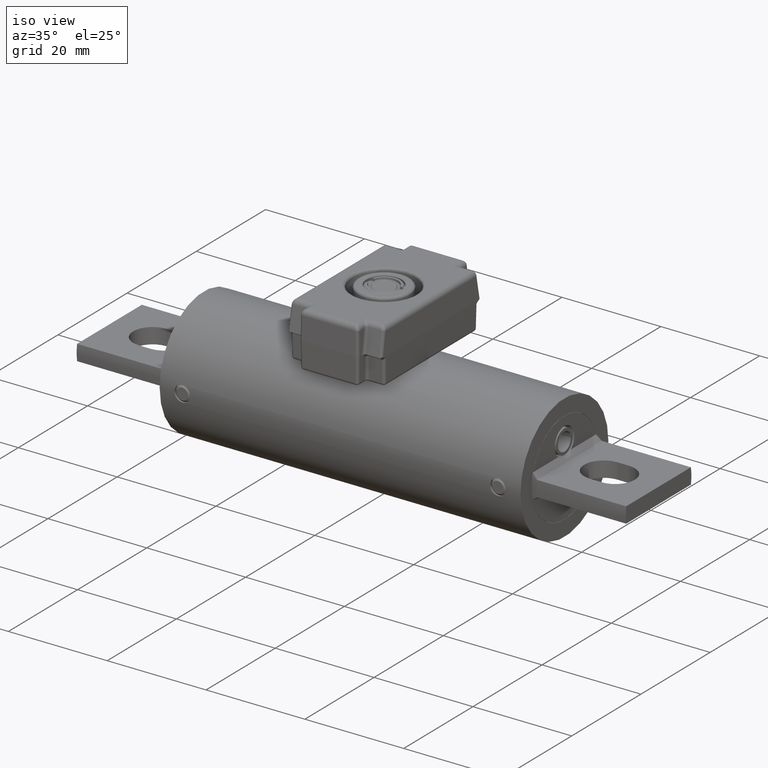
[diagram: clean part render]
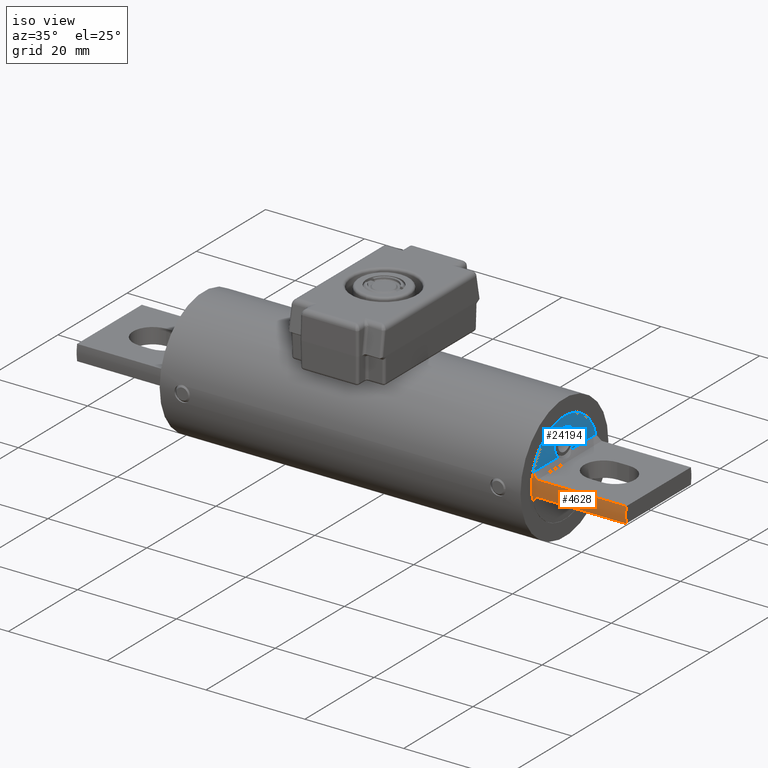
[diagram: same view with the hole feature highlighted: cylindrical wall and planar end face, labeled with their STEP entity ids]
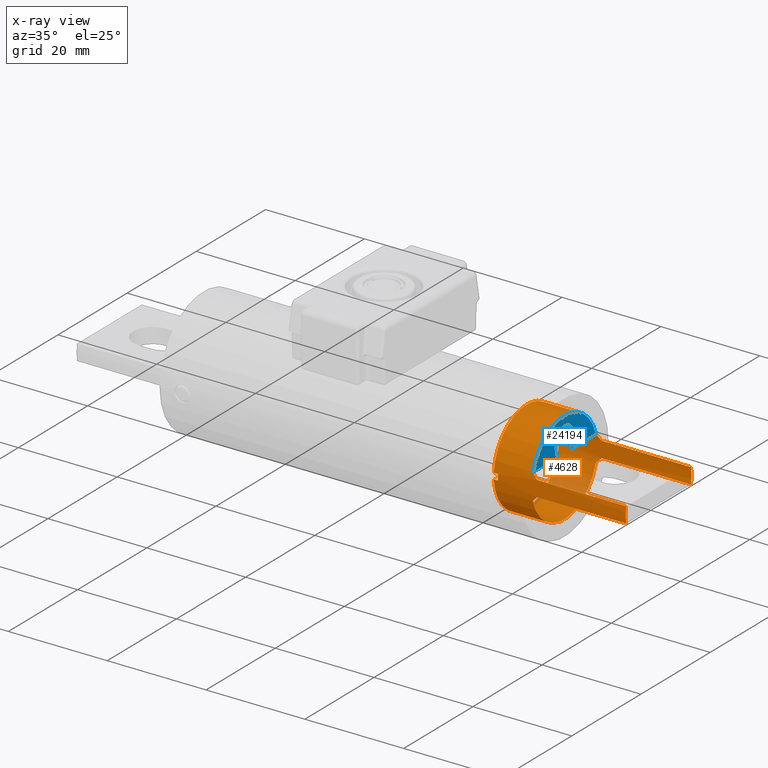
[diagram: x-ray of the same camera — body ghosted, the hole faces saturated]
A machine part, iso view. The highlighted faces form one hole feature of diameter 18.9738 mm: the cylindrical wall (entity #4628, orange) and its adjacent planar end face (entity #24194, blue) — they share a circular edge in the B-rep.
The next image is the same camera in x-ray (body ghosted, the hole faces saturated) — the bore reads through the body.
Wall:
#419 = VERTEX_POINT ( 'NONE', #13958 ) ;
#1029 = FACE_OUTER_BOUND ( 'NONE', #38234, .T. ) ;
#1181 = CARTESIAN_POINT ( 'NONE',  ( 1.477500000000000300, -0.3682336214959194300, -0.06250000000000002800 ) ) ;
#1650 = LINE ( 'NONE', #36578, #18123 ) ;
#1981 = CARTESIAN_POINT ( 'NONE',  ( 2.187500000000000000, -3.554355117631784200E-017, 2.589028924451572300E-017 ) ) ;
#2059 = ORIENTED_EDGE ( 'NONE', *, *, #4612, .T. ) ;
#2123 = DIRECTION ( 'NONE',  ( 0.0000000000000000000, 1.249000902703300900E-016, -1.000000000000000000 ) ) ;
#2461 = CARTESIAN_POINT ( 'NONE',  ( 1.450660385879203100, -0.3629159479313642200, -0.08933961412079789700 ) ) ;
#2647 = CARTESIAN_POINT ( 'NONE',  ( 1.437500000000000200, -0.3591601314177284000, 0.1025000000000005100 ) ) ;
#3353 = EDGE_CURVE ( 'NONE', #36595, #419, #27406, .T. ) ;
#4417 =( BOUNDED_CURVE ( )  B_SPLINE_CURVE ( 3, ( #39522, #2461, #21007, #24201 ),
 .UNSPECIFIED., .F., .T. ) 
 B_SPLINE_CURVE_WITH_KNOTS ( ( 4, 4 ),
 ( 1.292798332494933500, 1.402669369813196700 ),
 .UNSPECIFIED. ) 
 CURVE ( )  GEOMETRIC_REPRESENTATION_ITEM ( )  RATIONAL_B_SPLINE_CURVE ( ( 1.000000000000000000, 0.9989942825652147200, 0.9989942825652147200, 1.000000000000000000 ) ) 
 REPRESENTATION_ITEM ( '' )  );
#4612 = EDGE_CURVE ( 'NONE', #6393, #5491, #17468, .T. ) ;
#4628 = ADVANCED_FACE ( 'NONE', ( #25780, #1029 ), #37455, .T. ) ;
#5069 = CARTESIAN_POINT ( 'NONE',  ( 1.135500000000000200, -5.614887097410527000E-017, 7.178453579810328300E-019 ) ) ;
#5362 = LINE ( 'NONE', #31851, #20886 ) ;
#5422 = LINE ( 'NONE', #30240, #13658 ) ;
#5491 = VERTEX_POINT ( 'NONE', #8096 ) ;
#5558 = CARTESIAN_POINT ( 'NONE',  ( 2.187500000000000000, -3.554355117631784200E-017, 2.589028924451572300E-017 ) ) ;
#5664 = DIRECTION ( 'NONE',  ( 1.000000000000000000, 1.958680589143292400E-017, 2.392817859936758000E-017 ) ) ;
#6393 = VERTEX_POINT ( 'NONE', #37981 ) ;
#6484 = CIRCLE ( 'NONE', #14039, 0.3735000000000000000 ) ;
#6677 = CARTESIAN_POINT ( 'NONE',  ( 2.187500000000000000, -0.3682336214959194300, 0.06249999999999999300 ) ) ;
#6705 = LINE ( 'NONE', #25778, #13956 ) ;
#6865 = VERTEX_POINT ( 'NONE', #18351 ) ;
#6878 = VERTEX_POINT ( 'NONE', #9271 ) ;
#6962 = CARTESIAN_POINT ( 'NONE',  ( 1.464007142278144700, 0.3659434894754097800, -0.07599285772185598900 ) ) ;
#7252 = ORIENTED_EDGE ( 'NONE', *, *, #33712, .T. ) ;
#8096 = CARTESIAN_POINT ( 'NONE',  ( 1.135500000000000200, 0.3727599763923159500, -0.02349999999999995800 ) ) ;
#8190 = DIRECTION ( 'NONE',  ( 0.0000000000000000000, -1.249000902703300900E-016, 1.000000000000000000 ) ) ;
#8668 = DIRECTION ( 'NONE',  ( 0.0000000000000000000, -1.249000902703300900E-016, 1.000000000000000000 ) ) ;
#8784 = DIRECTION ( 'NONE',  ( -1.000000000000000000, -1.958680589143292400E-017, -2.392817859936758000E-017 ) ) ;
#8884 = EDGE_CURVE ( 'NONE', #419, #6393, #5422, .T. ) ;
#8907 = VERTEX_POINT ( 'NONE', #24611 ) ;
#9271 = CARTESIAN_POINT ( 'NONE',  ( 1.135500000000000200, 0.3727599763923159500, 0.02350000000000004900 ) ) ;
#9414 = VERTEX_POINT ( 'NONE', #19151 ) ;
#9728 = DIRECTION ( 'NONE',  ( 1.000000000000000000, 1.958680589143292400E-017, 2.392817859936758000E-017 ) ) ;
#9740 =( BOUNDED_CURVE ( )  B_SPLINE_CURVE ( 3, ( #18041, #36698, #21168, #2647 ),
 .UNSPECIFIED., .F., .F. ) 
 B_SPLINE_CURVE_WITH_KNOTS ( ( 4, 4 ),
 ( 4.880515937366389800, 4.990386974684653000 ),
 .UNSPECIFIED. ) 
 CURVE ( )  GEOMETRIC_REPRESENTATION_ITEM ( )  RATIONAL_B_SPLINE_CURVE ( ( 1.000000000000000000, 0.9989942825652147200, 0.9989942825652147200, 1.000000000000000000 ) ) 
 REPRESENTATION_ITEM ( '' )  );
#10015 = CARTESIAN_POINT ( 'NONE',  ( 1.477500000000000300, 0.3682336214959193200, 0.06250000000000005600 ) ) ;
#10829 = ORIENTED_EDGE ( 'NONE', *, *, #26887, .F. ) ;
#10997 = CARTESIAN_POINT ( 'NONE',  ( 1.167500000000000000, -5.552209318557942000E-017, 1.483547073160791200E-018 ) ) ;
#11334 = CARTESIAN_POINT ( 'NONE',  ( 1.437500000000000200, -0.3591601314177284000, 0.1025000000000005100 ) ) ;
#11903 = CARTESIAN_POINT ( 'NONE',  ( 1.437500000000000200, 0.3591601314177282900, 0.1025000000000005900 ) ) ;
#12544 = AXIS2_PLACEMENT_3D ( 'NONE', #15726, #37452, #18793 ) ;
#12698 = EDGE_CURVE ( 'NONE', #6865, #36595, #6705, .T. ) ;
#12801 = DIRECTION ( 'NONE',  ( 0.0000000000000000000, -1.249000902703300900E-016, 1.000000000000000000 ) ) ;
#13054 = CARTESIAN_POINT ( 'NONE',  ( 1.450660385879203100, 0.3629159479313641100, 0.08933961412079792500 ) ) ;
#13657 = ORIENTED_EDGE ( 'NONE', *, *, #24847, .F. ) ;
#13658 = VECTOR ( 'NONE', #36918, 39.37007874015748100 ) ;
#13851 = EDGE_LOOP ( 'NONE', ( #16495, #16809, #7252, #19587, #18102, #34927, #2059, #27158 ) ) ;
#13891 = LINE ( 'NONE', #33490, #37767 ) ;
#13956 = VECTOR ( 'NONE', #28914, 39.37007874015748100 ) ;
#13958 = CARTESIAN_POINT ( 'NONE',  ( 1.167500000000000000, -0.3727599763923160600, -0.02350000000000005200 ) ) ;
#14039 = AXIS2_PLACEMENT_3D ( 'NONE', #5558, #27320, #8668 ) ;
#14116 = DIRECTION ( 'NONE',  ( 0.0000000000000000000, -1.249000902703300900E-016, 1.000000000000000000 ) ) ;
#14542 = DIRECTION ( 'NONE',  ( 1.000000000000000000, 1.958680589143292400E-017, 2.392817859936758000E-017 ) ) ;
#14893 = CARTESIAN_POINT ( 'NONE',  ( 2.187500000000000000, -3.554355117631784200E-017, 2.589028924451572300E-017 ) ) ;
#15211 = VERTEX_POINT ( 'NONE', #16289 ) ;
#15295 = VECTOR ( 'NONE', #5664, 39.37007874015748100 ) ;
#15310 = AXIS2_PLACEMENT_3D ( 'NONE', #1981, #39165, #2123 ) ;
#15514 = EDGE_CURVE ( 'NONE', #16676, #38497, #4417, .T. ) ;
#15561 = EDGE_CURVE ( 'NONE', #22190, #19717, #38355, .T. ) ;
#15726 = CARTESIAN_POINT ( 'NONE',  ( 1.135500000000000200, -5.614887097410527000E-017, 7.178453579810328300E-019 ) ) ;
#16200 = CIRCLE ( 'NONE', #37530, 0.3735000000000000000 ) ;
#16289 = CARTESIAN_POINT ( 'NONE',  ( 2.187500000000000000, 0.3682336214959193200, -0.06249999999999992400 ) ) ;
#16495 = ORIENTED_EDGE ( 'NONE', *, *, #22596, .T. ) ;
#16676 = VERTEX_POINT ( 'NONE', #28415 ) ;
#16809 = ORIENTED_EDGE ( 'NONE', *, *, #35289, .T. ) ;
#17022 = VERTEX_POINT ( 'NONE', #31498 ) ;
#17468 = CIRCLE ( 'NONE', #38976, 0.3735000000000000000 ) ;
#17508 = DIRECTION ( 'NONE',  ( 1.000000000000000000, 1.958680589143292400E-017, 2.392817859936758000E-017 ) ) ;
#17510 = ORIENTED_EDGE ( 'NONE', *, *, #31698, .T. ) ;
#17992 = DIRECTION ( 'NONE',  ( 0.0000000000000000000, -1.249000902703300900E-016, 1.000000000000000000 ) ) ;
#18041 = CARTESIAN_POINT ( 'NONE',  ( 1.477500000000000300, -0.3682336214959194300, 0.06249999999999997200 ) ) ;
#18102 = ORIENTED_EDGE ( 'NONE', *, *, #3353, .T. ) ;
#18123 = VECTOR ( 'NONE', #14542, 39.37007874015748100 ) ;
#18351 = CARTESIAN_POINT ( 'NONE',  ( 1.135500000000000200, -0.3727599763923160600, 0.02349999999999995500 ) ) ;
#18793 = DIRECTION ( 'NONE',  ( 0.0000000000000000000, -1.249000902703300900E-016, 1.000000000000000000 ) ) ;
#18872 = EDGE_CURVE ( 'NONE', #37083, #15211, #29099, .T. ) ;
#19151 = CARTESIAN_POINT ( 'NONE',  ( 1.167500000000000000, 0.3727599763923159500, -0.02349999999999995800 ) ) ;
#19587 = ORIENTED_EDGE ( 'NONE', *, *, #12698, .T. ) ;
#19717 = VERTEX_POINT ( 'NONE', #24516 ) ;
#19938 =( BOUNDED_CURVE ( )  B_SPLINE_CURVE ( 3, ( #28718, #6962, #25581, #31854 ),
 .UNSPECIFIED., .F., .F. ) 
 B_SPLINE_CURVE_WITH_KNOTS ( ( 4, 4 ),
 ( 4.880515937366389800, 4.990386974684653000 ),
 .UNSPECIFIED. ) 
 CURVE ( )  GEOMETRIC_REPRESENTATION_ITEM ( )  RATIONAL_B_SPLINE_CURVE ( ( 1.000000000000000000, 0.9989942825652147200, 0.9989942825652147200, 1.000000000000000000 ) ) 
 REPRESENTATION_ITEM ( '' )  );
#20608 = ORIENTED_EDGE ( 'NONE', *, *, #23334, .F. ) ;
#20816 = VECTOR ( 'NONE', #30002, 39.37007874015748100 ) ;
#20886 = VECTOR ( 'NONE', #37940, 39.37007874015748100 ) ;
#21007 = CARTESIAN_POINT ( 'NONE',  ( 1.464007142278144700, -0.3659434894754098900, -0.07599285772185608600 ) ) ;
#21168 = CARTESIAN_POINT ( 'NONE',  ( 1.450660385879203100, -0.3629159479313641700, 0.08933961412079782800 ) ) ;
#21265 = CARTESIAN_POINT ( 'NONE',  ( 2.187500000000000000, -0.3682336214959194300, 0.06249999999999999300 ) ) ;
#22033 = ORIENTED_EDGE ( 'NONE', *, *, #15561, .F. ) ;
#22190 = VERTEX_POINT ( 'NONE', #33196 ) ;
#22196 = CIRCLE ( 'NONE', #37590, 0.3735000000000000000 ) ;
#22596 = EDGE_CURVE ( 'NONE', #9414, #17022, #35676, .T. ) ;
#22607 = CARTESIAN_POINT ( 'NONE',  ( 1.167500000000000000, -0.3727599763923160600, 0.02349999999999995500 ) ) ;
#22875 = EDGE_CURVE ( 'NONE', #5491, #9414, #1650, .T. ) ;
#23334 = EDGE_CURVE ( 'NONE', #15211, #22190, #6484, .T. ) ;
#23728 = EDGE_CURVE ( 'NONE', #36308, #28763, #16200, .T. ) ;
#24197 = ORIENTED_EDGE ( 'NONE', *, *, #18872, .F. ) ;
#24201 = CARTESIAN_POINT ( 'NONE',  ( 1.477500000000000300, -0.3682336214959194300, -0.06250000000000002800 ) ) ;
#24379 = ORIENTED_EDGE ( 'NONE', *, *, #25990, .T. ) ;
#24516 = CARTESIAN_POINT ( 'NONE',  ( 1.477500000000000300, 0.3682336214959193200, 0.06250000000000005600 ) ) ;
#24611 = CARTESIAN_POINT ( 'NONE',  ( 1.477500000000000300, -0.3682336214959194300, 0.06249999999999997200 ) ) ;
#24847 = EDGE_CURVE ( 'NONE', #25225, #38497, #5362, .T. ) ;
#25195 = CARTESIAN_POINT ( 'NONE',  ( 1.167500000000000000, -5.552209318557942000E-017, 1.483547073160791200E-018 ) ) ;
#25225 = VERTEX_POINT ( 'NONE', #31399 ) ;
#25315 = DIRECTION ( 'NONE',  ( 1.000000000000000000, 1.958680589143292400E-017, 2.392817859936758000E-017 ) ) ;
#25581 = CARTESIAN_POINT ( 'NONE',  ( 1.450660385879203100, 0.3629159479313640600, -0.08933961412079778600 ) ) ;
#25626 = CIRCLE ( 'NONE', #26723, 0.3735000000000000000 ) ;
#25778 = CARTESIAN_POINT ( 'NONE',  ( 2.187500000000000000, -0.3727599763923160600, 0.02349999999999997900 ) ) ;
#25780 = FACE_OUTER_BOUND ( 'NONE', #13851, .T. ) ;
#25810 = CARTESIAN_POINT ( 'NONE',  ( 1.477500000000000300, 0.3682336214959193200, -0.06249999999999993800 ) ) ;
#25990 = EDGE_CURVE ( 'NONE', #37083, #36688, #19938, .T. ) ;
#26309 = EDGE_CURVE ( 'NONE', #8907, #28763, #9740, .T. ) ;
#26723 = AXIS2_PLACEMENT_3D ( 'NONE', #36175, #17508, #39302 ) ;
#26801 = DIRECTION ( 'NONE',  ( 1.000000000000000000, 1.958680589143292400E-017, 2.392817859936758000E-017 ) ) ;
#26887 = EDGE_CURVE ( 'NONE', #8907, #37077, #40129, .T. ) ;
#26889 = CARTESIAN_POINT ( 'NONE',  ( 2.187500000000000000, 0.3682336214959193200, -0.06249999999999992400 ) ) ;
#27158 = ORIENTED_EDGE ( 'NONE', *, *, #22875, .T. ) ;
#27320 = DIRECTION ( 'NONE',  ( 1.000000000000000000, 1.958680589143292400E-017, 2.392817859936758000E-017 ) ) ;
#27406 = CIRCLE ( 'NONE', #31932, 0.3735000000000000000 ) ;
#28240 = ORIENTED_EDGE ( 'NONE', *, *, #15514, .T. ) ;
#28409 = CARTESIAN_POINT ( 'NONE',  ( 1.437500000000000200, -5.023365559489253200E-017, 7.944155294990036600E-018 ) ) ;
#28415 = CARTESIAN_POINT ( 'NONE',  ( 1.437500000000000200, -0.3591601314177284000, -0.1025000000000005500 ) ) ;
#28691 = CARTESIAN_POINT ( 'NONE',  ( 1.464007142278144700, 0.3659434894754097800, 0.07599285772185610000 ) ) ;
#28718 = CARTESIAN_POINT ( 'NONE',  ( 1.477500000000000300, 0.3682336214959193200, -0.06249999999999993800 ) ) ;
#28763 = VERTEX_POINT ( 'NONE', #11334 ) ;
#28914 = DIRECTION ( 'NONE',  ( 1.000000000000000000, 1.958680589143292400E-017, 2.392817859936758000E-017 ) ) ;
#28988 = CARTESIAN_POINT ( 'NONE',  ( 1.437500000000000200, 0.3591601314177282900, -0.1025000000000004700 ) ) ;
#29099 = LINE ( 'NONE', #26889, #20816 ) ;
#29987 = ORIENTED_EDGE ( 'NONE', *, *, #35268, .F. ) ;
#30002 = DIRECTION ( 'NONE',  ( 1.000000000000000000, 1.958680589143292400E-017, 2.392817859936758000E-017 ) ) ;
#30240 = CARTESIAN_POINT ( 'NONE',  ( 2.187500000000000000, -0.3727599763923160600, -0.02350000000000002800 ) ) ;
#30388 = DIRECTION ( 'NONE',  ( -1.000000000000000000, -1.958680589143292400E-017, -2.392817859936758000E-017 ) ) ;
#30528 = CARTESIAN_POINT ( 'NONE',  ( 2.187500000000000000, 0.3682336214959193200, 0.06250000000000006900 ) ) ;
#30652 = EDGE_CURVE ( 'NONE', #16676, #36688, #25626, .T. ) ;
#31135 = CIRCLE ( 'NONE', #12544, 0.3735000000000000000 ) ;
#31399 = CARTESIAN_POINT ( 'NONE',  ( 2.187500000000000000, -0.3682336214959194300, -0.06250000000000001400 ) ) ;
#31498 = CARTESIAN_POINT ( 'NONE',  ( 1.167500000000000000, 0.3727599763923159500, 0.02350000000000004900 ) ) ;
#31523 = DIRECTION ( 'NONE',  ( 0.0000000000000000000, -1.249000902703300900E-016, 1.000000000000000000 ) ) ;
#31698 = EDGE_CURVE ( 'NONE', #36308, #19717, #36691, .T. ) ;
#31851 = CARTESIAN_POINT ( 'NONE',  ( 2.187500000000000000, -0.3682336214959194300, -0.06250000000000001400 ) ) ;
#31854 = CARTESIAN_POINT ( 'NONE',  ( 1.437500000000000200, 0.3591601314177282900, -0.1025000000000004700 ) ) ;
#31932 = AXIS2_PLACEMENT_3D ( 'NONE', #25195, #25315, #12801 ) ;
#32765 = DIRECTION ( 'NONE',  ( 1.000000000000000000, 1.958680589143292400E-017, 2.392817859936758000E-017 ) ) ;
#33196 = CARTESIAN_POINT ( 'NONE',  ( 2.187500000000000000, 0.3682336214959192600, 0.06250000000000006900 ) ) ;
#33490 = CARTESIAN_POINT ( 'NONE',  ( 2.187500000000000000, 0.3727599763923159500, 0.02350000000000007300 ) ) ;
#33646 = ORIENTED_EDGE ( 'NONE', *, *, #30652, .F. ) ;
#33712 = EDGE_CURVE ( 'NONE', #6878, #6865, #31135, .T. ) ;
#34756 = CARTESIAN_POINT ( 'NONE',  ( 1.437500000000000200, 0.3591601314177282900, 0.1025000000000005900 ) ) ;
#34927 = ORIENTED_EDGE ( 'NONE', *, *, #8884, .T. ) ;
#35268 = EDGE_CURVE ( 'NONE', #37077, #25225, #22196, .T. ) ;
#35289 = EDGE_CURVE ( 'NONE', #17022, #6878, #13891, .T. ) ;
#35676 = CIRCLE ( 'NONE', #38753, 0.3735000000000000000 ) ;
#36175 = CARTESIAN_POINT ( 'NONE',  ( 1.437500000000000200, -5.023365559489253200E-017, 7.944155294990036600E-018 ) ) ;
#36308 = VERTEX_POINT ( 'NONE', #11903 ) ;
#36578 = CARTESIAN_POINT ( 'NONE',  ( 2.187500000000000000, 0.3727599763923159500, -0.02349999999999993400 ) ) ;
#36595 = VERTEX_POINT ( 'NONE', #22607 ) ;
#36651 = DIRECTION ( 'NONE',  ( 1.000000000000000000, 1.958680589143292400E-017, 2.392817859936758000E-017 ) ) ;
#36688 = VERTEX_POINT ( 'NONE', #28988 ) ;
#36691 =( BOUNDED_CURVE ( )  B_SPLINE_CURVE ( 3, ( #34756, #13054, #28691, #10015 ),
 .UNSPECIFIED., .F., .F. ) 
 B_SPLINE_CURVE_WITH_KNOTS ( ( 4, 4 ),
 ( 1.292798332494933500, 1.402669369813196700 ),
 .UNSPECIFIED. ) 
 CURVE ( )  GEOMETRIC_REPRESENTATION_ITEM ( )  RATIONAL_B_SPLINE_CURVE ( ( 1.000000000000000000, 0.9989942825652147200, 0.9989942825652147200, 1.000000000000000000 ) ) 
 REPRESENTATION_ITEM ( '' )  );
#36698 = CARTESIAN_POINT ( 'NONE',  ( 1.464007142278144700, -0.3659434894754098900, 0.07599285772185600300 ) ) ;
#36918 = DIRECTION ( 'NONE',  ( -1.000000000000000000, -1.958680589143292400E-017, -2.392817859936758000E-017 ) ) ;
#36975 = ORIENTED_EDGE ( 'NONE', *, *, #26309, .T. ) ;
#37077 = VERTEX_POINT ( 'NONE', #6677 ) ;
#37083 = VERTEX_POINT ( 'NONE', #25810 ) ;
#37303 = ORIENTED_EDGE ( 'NONE', *, *, #23728, .F. ) ;
#37415 = VECTOR ( 'NONE', #8784, 39.37007874015748100 ) ;
#37452 = DIRECTION ( 'NONE',  ( 1.000000000000000000, 1.958680589143292400E-017, 2.392817859936758000E-017 ) ) ;
#37455 = CYLINDRICAL_SURFACE ( 'NONE', #15310, 0.3735000000000000000 ) ;
#37530 = AXIS2_PLACEMENT_3D ( 'NONE', #28409, #9728, #31523 ) ;
#37590 = AXIS2_PLACEMENT_3D ( 'NONE', #14893, #36651, #17992 ) ;
#37767 = VECTOR ( 'NONE', #30388, 39.37007874015748100 ) ;
#37940 = DIRECTION ( 'NONE',  ( -1.000000000000000000, -1.958680589143292400E-017, -2.392817859936758000E-017 ) ) ;
#37981 = CARTESIAN_POINT ( 'NONE',  ( 1.135500000000000200, -0.3727599763923160600, -0.02350000000000005200 ) ) ;
#38234 = EDGE_LOOP ( 'NONE', ( #13657, #29987, #10829, #36975, #37303, #17510, #22033, #20608, #24197, #24379, #33646, #28240 ) ) ;
#38355 = LINE ( 'NONE', #30528, #37415 ) ;
#38497 = VERTEX_POINT ( 'NONE', #1181 ) ;
#38753 = AXIS2_PLACEMENT_3D ( 'NONE', #10997, #32765, #14116 ) ;
#38976 = AXIS2_PLACEMENT_3D ( 'NONE', #5069, #26801, #8190 ) ;
#39165 = DIRECTION ( 'NONE',  ( -1.000000000000000000, -1.958680589143292400E-017, -2.392817859936758000E-017 ) ) ;
#39302 = DIRECTION ( 'NONE',  ( 0.0000000000000000000, -1.249000902703300900E-016, 1.000000000000000000 ) ) ;
#39522 = CARTESIAN_POINT ( 'NONE',  ( 1.437500000000000200, -0.3591601314177284000, -0.1025000000000005500 ) ) ;
#40129 = LINE ( 'NONE', #21265, #15295 ) ;
End face:
#1435 = CARTESIAN_POINT ( 'NONE',  ( 1.437500000000000200, -7.365242252057942700E-017, 0.1875000000000000300 ) ) ;
#3135 = CARTESIAN_POINT ( 'NONE',  ( 1.437500000000000200, -5.023365559489253200E-017, 7.944155294990036600E-018 ) ) ;
#3567 = CARTESIAN_POINT ( 'NONE',  ( 1.437500000000000200, -0.07293147468685991200, 0.1025000000000005500 ) ) ;
#4552 = DIRECTION ( 'NONE',  ( 0.0000000000000000000, -1.249000902703300900E-016, 1.000000000000000000 ) ) ;
#5862 = CARTESIAN_POINT ( 'NONE',  ( 1.437500000000000200, 0.3682336214959193200, 0.1025000000000005900 ) ) ;
#5866 = CARTESIAN_POINT ( 'NONE',  ( 1.437500000000000200, 0.07293147468685981500, 0.1025000000000005600 ) ) ;
#6191 = DIRECTION ( 'NONE',  ( -2.392817859936757400E-017, -1.249000902703301100E-016, 1.000000000000000000 ) ) ;
#6993 = CIRCLE ( 'NONE', #13012, 0.1119999999999999900 ) ;
#7166 = VECTOR ( 'NONE', #8969, 39.37007874015748100 ) ;
#7729 = LINE ( 'NONE', #33647, #16004 ) ;
#8705 = ORIENTED_EDGE ( 'NONE', *, *, #37172, .T. ) ;
#8790 = DIRECTION ( 'NONE',  ( -1.958680589143292700E-017, 1.000000000000000000, 1.249000902703301100E-016 ) ) ;
#8814 = FACE_OUTER_BOUND ( 'NONE', #25360, .T. ) ;
#8969 = DIRECTION ( 'NONE',  ( -1.958680589143292700E-017, 1.000000000000000000, 1.249000902703301100E-016 ) ) ;
#9728 = DIRECTION ( 'NONE',  ( 1.000000000000000000, 1.958680589143292400E-017, 2.392817859936758000E-017 ) ) ;
#11334 = CARTESIAN_POINT ( 'NONE',  ( 1.437500000000000200, -0.3591601314177284000, 0.1025000000000005100 ) ) ;
#11903 = CARTESIAN_POINT ( 'NONE',  ( 1.437500000000000200, 0.3591601314177282900, 0.1025000000000005900 ) ) ;
#11904 = EDGE_CURVE ( 'NONE', #28763, #35446, #31991, .T. ) ;
#12649 = ORIENTED_EDGE ( 'NONE', *, *, #11904, .T. ) ;
#13012 = AXIS2_PLACEMENT_3D ( 'NONE', #1435, #23126, #4552 ) ;
#15739 = ORIENTED_EDGE ( 'NONE', *, *, #22634, .F. ) ;
#16004 = VECTOR ( 'NONE', #8790, 39.37007874015748100 ) ;
#16200 = CIRCLE ( 'NONE', #37530, 0.3735000000000000000 ) ;
#22634 = EDGE_CURVE ( 'NONE', #37503, #35446, #6993, .T. ) ;
#23126 = DIRECTION ( 'NONE',  ( 1.000000000000000000, 1.958680589143292400E-017, 2.392817859936758000E-017 ) ) ;
#23728 = EDGE_CURVE ( 'NONE', #36308, #28763, #16200, .T. ) ;
#24194 = ADVANCED_FACE ( 'NONE', ( #8814 ), #37050, .T. ) ;
#24859 = DIRECTION ( 'NONE',  ( 1.000000000000000000, 1.958680589143292400E-017, 2.392817859936757700E-017 ) ) ;
#25360 = EDGE_LOOP ( 'NONE', ( #15739, #8705, #33503, #12649 ) ) ;
#28409 = CARTESIAN_POINT ( 'NONE',  ( 1.437500000000000200, -5.023365559489253200E-017, 7.944155294990036600E-018 ) ) ;
#28763 = VERTEX_POINT ( 'NONE', #11334 ) ;
#31523 = DIRECTION ( 'NONE',  ( 0.0000000000000000000, -1.249000902703300900E-016, 1.000000000000000000 ) ) ;
#31991 = LINE ( 'NONE', #5862, #7166 ) ;
#33503 = ORIENTED_EDGE ( 'NONE', *, *, #23728, .T. ) ;
#33647 = CARTESIAN_POINT ( 'NONE',  ( 1.437500000000000200, 0.3682336214959193200, 0.1025000000000005900 ) ) ;
#35446 = VERTEX_POINT ( 'NONE', #3567 ) ;
#36308 = VERTEX_POINT ( 'NONE', #11903 ) ;
#37050 = PLANE ( 'NONE',  #37763 ) ;
#37172 = EDGE_CURVE ( 'NONE', #37503, #36308, #7729, .T. ) ;
#37503 = VERTEX_POINT ( 'NONE', #5866 ) ;
#37530 = AXIS2_PLACEMENT_3D ( 'NONE', #28409, #9728, #31523 ) ;
#37763 = AXIS2_PLACEMENT_3D ( 'NONE', #3135, #24859, #6191 ) ;